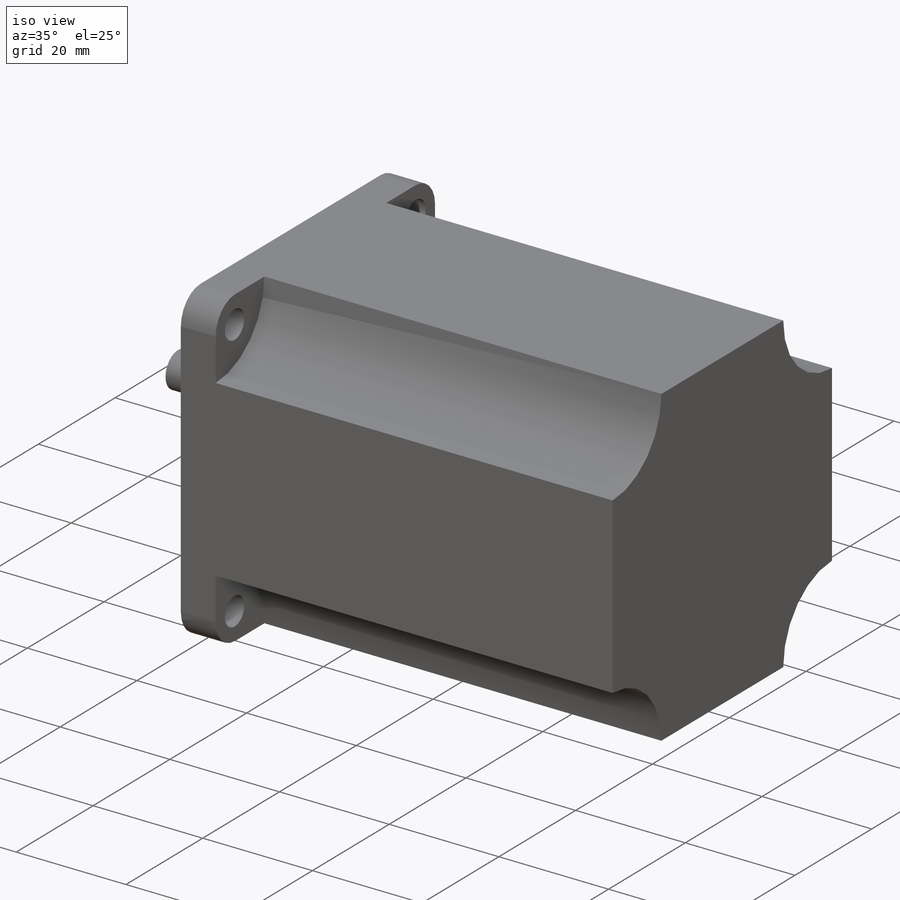
[diagram: iso view]
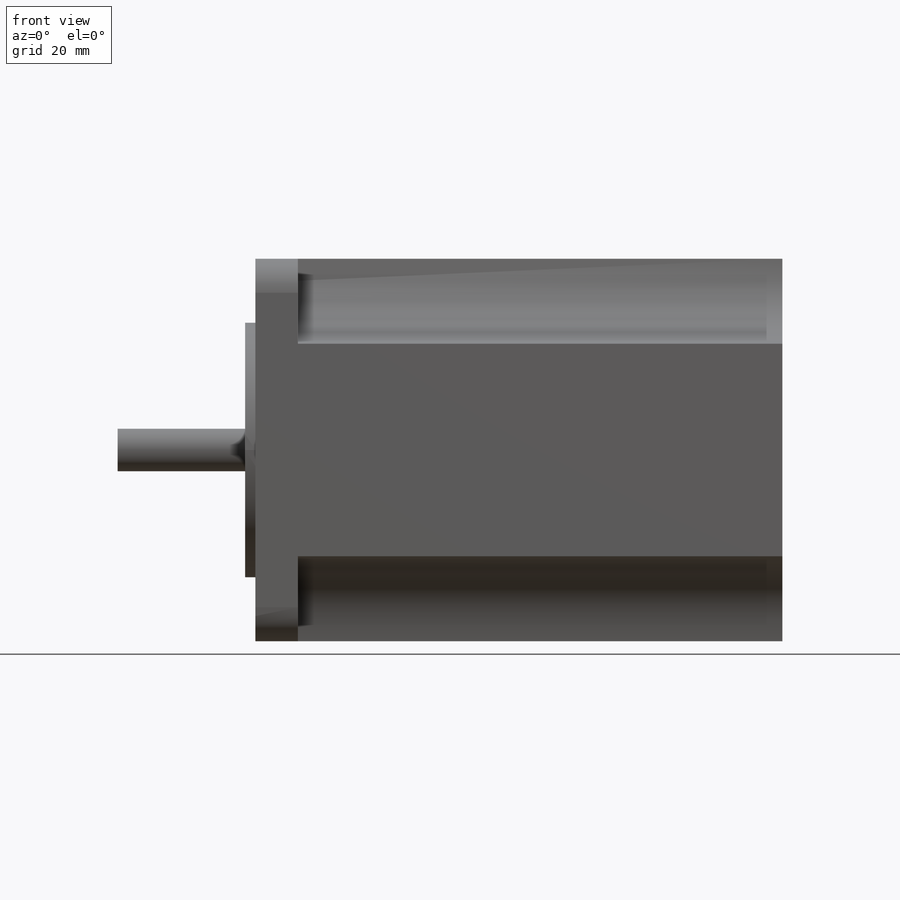
[diagram: front view]
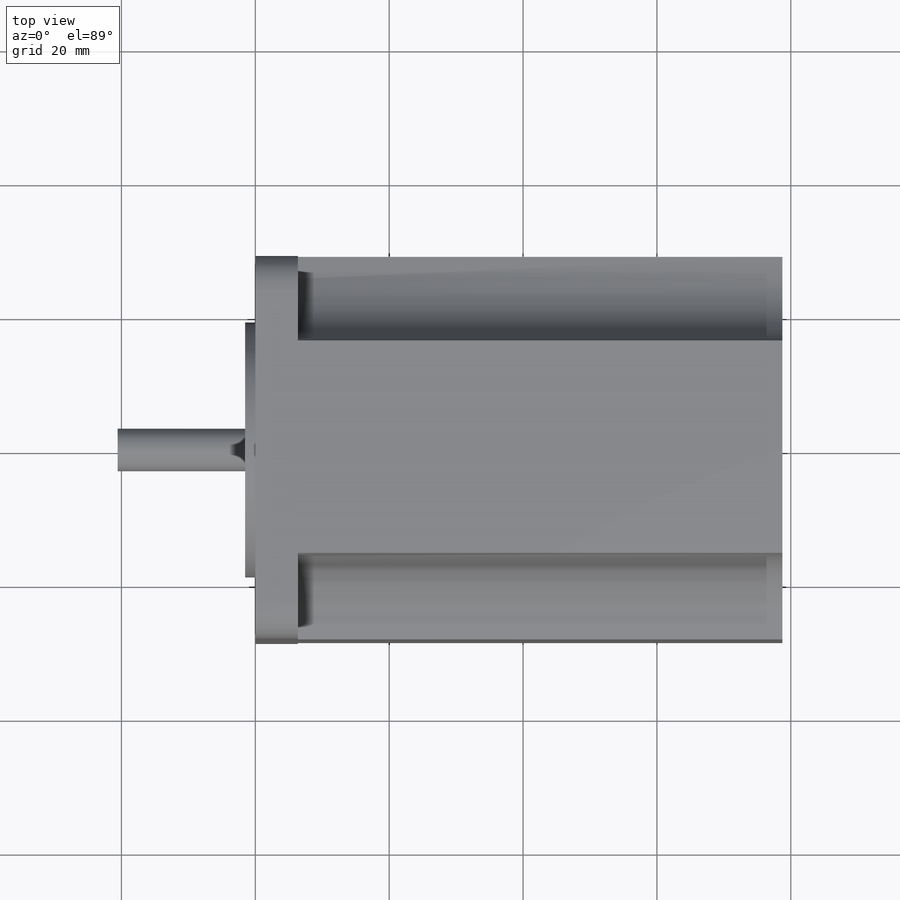
[diagram: top view]
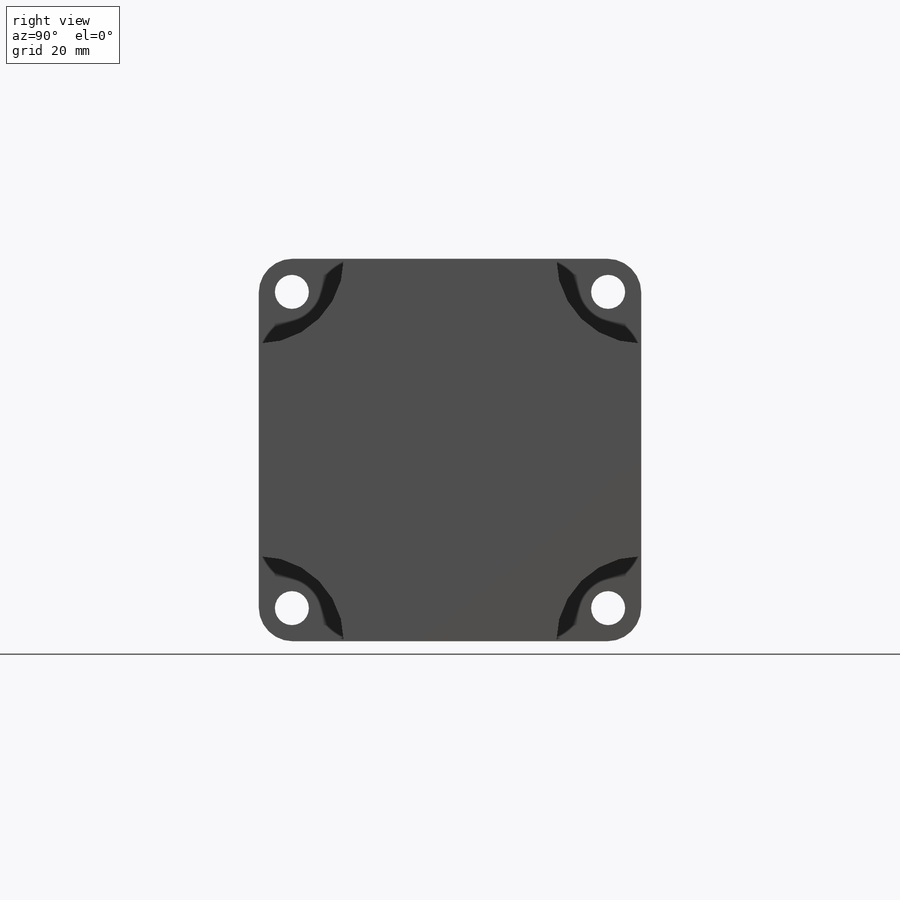
[diagram: right view]
SOLIDWORKS PART (.sldprt)
format: sldprt  version: not decoded by parser v0  size: 210,432 bytes
history: native  units: mm
features: sketch x4, extrude x4, material x1, fillet x1 (+12 scaffold rows collapsed)
feature tree (22):
  scaffold x12  (default folders/planes/origin — collapsed)
  material  "Plain Carbon Steel"
  sketch  "Sketch1"  dims[c1.D2=19.05mm c1.D3=5.08mm c1.D1=47.244mm c2.D2=57.15mm]
  extrude  "Boss-Extrude1"  Depth=6.35mm
  fillet  "Fillet1"  Radius=5.08mm
  sketch  "Sketch5"  dims[D1=38.1mm]
  extrude  "Boss-Extrude4"  Depth=1.524mm
  sketch  "Sketch6"  dims[D1=6.35mm]
  extrude  "Boss-Extrude5"  Depth=19.05mm
  sketch  "Sketch7"  dims[D1=25.4mm]
  extrude  "Boss-Extrude6"  Depth=72.39mm
decode coverage: 9 of 9 modeling features carry decoded parameters
note: suppression state not decoded; provenance and decode notes live in map.json
